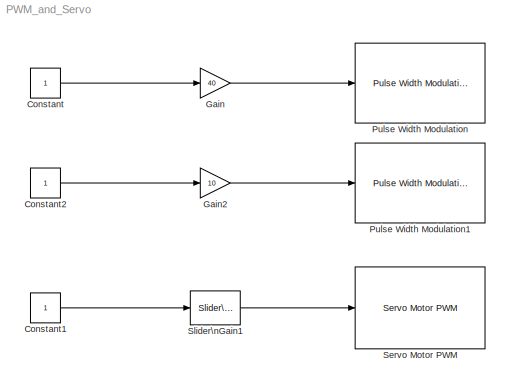
MODEL PWM_and_Servo
KIND model
BLOCK [Constant] Constant
  SID = 1
BLOCK [Constant] Constant1
  SID = 2
BLOCK [Constant] Constant2
  SID = 3
BLOCK [Gain] Gain
  Gain = 40
  SID = 4
BLOCK [Gain] Gain2
  Gain = 10
  SID = 5
BLOCK [Reference] Pulse Width Modulation  REF=mc9s12tool/Pulse Width Modulation
  FunctionWithSeparateData = off
  PWMperiod = 1
  Ports = [1]
  RTWMemSecDataConstants = Inherit from model
  RTWMemSecDataInternal = Inherit from model
  RTWMemSecDataParameters = Inherit from model
  RTWMemSecFuncExecute = Inherit from model
  RTWMemSecFuncInitTerm = Inherit from model
  SID = 10
  ShowPortLabels = FromPortIcon
  SourceBlock = mc9s12tool/Pulse Width Modulation
  SourceType = Unknown
  SystemSampleTime = -1
  Tag = mcTarget_pwm
  Vmax = 100
  pulse_pin = 1  (8-bit / 16-bit)
  resolution = 16 bit
  sampletime = 0.01
  sig_mon = off
  sign_pin = 1
  sign_port = PTH
BLOCK [Reference] Pulse Width Modulation1  REF=mc9s12tool/Pulse Width Modulation
  FunctionWithSeparateData = off
  PWMperiod = 0.5
  Ports = [1]
  RTWMemSecDataConstants = Inherit from model
  RTWMemSecDataInternal = Inherit from model
  RTWMemSecDataParameters = Inherit from model
  RTWMemSecFuncExecute = Inherit from model
  RTWMemSecFuncInitTerm = Inherit from model
  SID = 11
  ShowPortLabels = FromPortIcon
  SourceBlock = mc9s12tool/Pulse Width Modulation
  SourceType = Unknown
  SystemSampleTime = -1
  Tag = mcTarget_pwm
  Vmax = 100
  pulse_pin = 5  (8-bit / 16-bit)
  resolution = 16 bit
  sampletime = 0.01
  sig_mon = off
  sign_pin = 2
  sign_port = PTH
BLOCK [Reference] Servo Motor PWM  REF=mc9s12tool/Servo Motor PWM
  FunctionWithSeparateData = off
  PWMperiod = 0.02
  Ports = [1]
  RTWMemSecDataConstants = Inherit from model
  RTWMemSecDataInternal = Inherit from model
  RTWMemSecDataParameters = Inherit from model
  RTWMemSecFuncExecute = Inherit from model
  RTWMemSecFuncInitTerm = Inherit from model
  SID = 12
  ShowPortLabels = FromPortIcon
  SourceBlock = mc9s12tool/Servo Motor PWM
  SourceType = Unknown
  SystemSampleTime = -1
  Tag = mcTarget_pwmServo
  Vmax = 1
  maxwidth = 0.0020
  minwidth = 0.0006
  pulse_pin = 3  (8-bit / 16-bit)
  resolution = 16 bit
  sampletime = 0.02
BLOCK [Reference] Slider\nGain1  REF=simulink/Math\nOperations/Slider\nGain
  FunctionWithSeparateData = off
  Ports = [1, 1]
  RTWMemSecDataConstants = Inherit from model
  RTWMemSecDataInternal = Inherit from model
  RTWMemSecDataParameters = Inherit from model
  RTWMemSecFuncExecute = Inherit from model
  RTWMemSecFuncInitTerm = Inherit from model
  SID = 9
  ShowPortLabels = FromPortIcon
  SourceBlock = simulink/Math\nOperations/Slider\nGain
  SourceProductBaseCode = SL
  SourceProductName = Simulink
  SourceType = Slider Gain
  SystemSampleTime = -1
  gain = 0.731
  high = 1
  low = 0
LINE Constant1:1 -> Slider\nGain1:1
LINE Constant2:1 -> Gain2:1
LINE Constant:1 -> Gain:1
LINE Gain2:1 -> Pulse Width Modulation1:1
LINE Gain:1 -> Pulse Width Modulation:1
LINE Slider\nGain1:1 -> Servo Motor PWM:1
